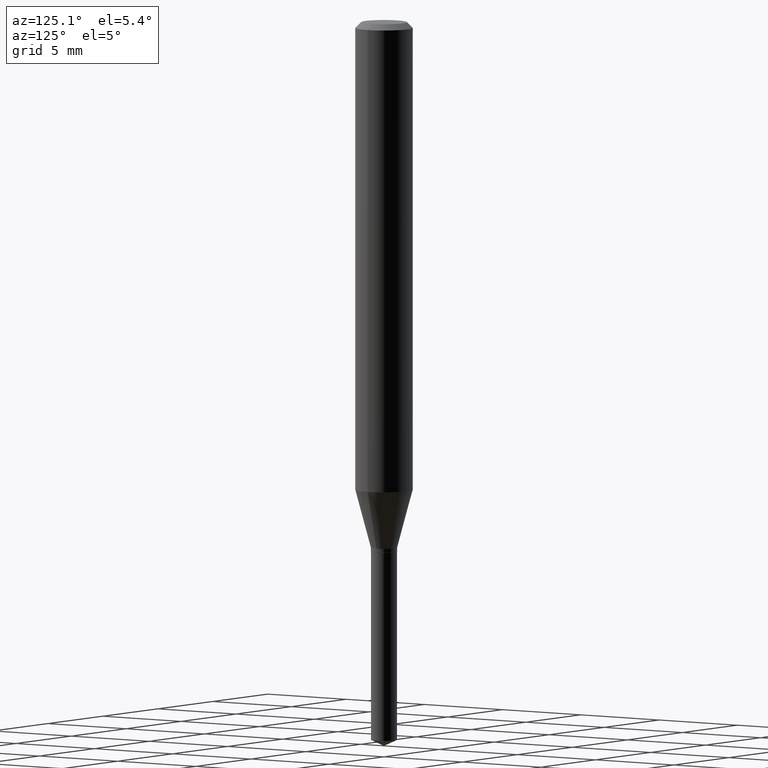
[diagram: clean part render]
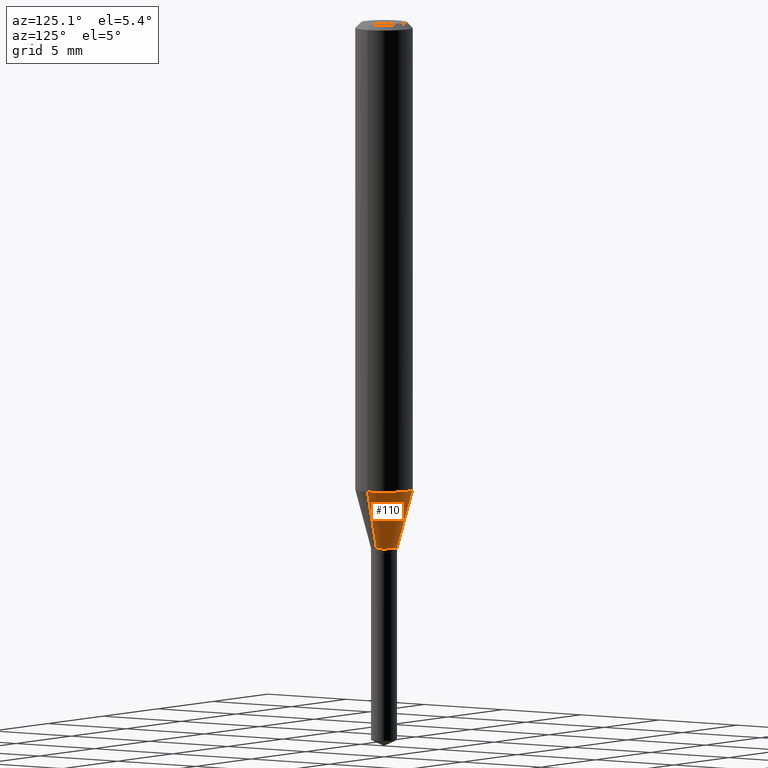
[diagram: same view with one face highlighted and labeled with its STEP entity id]
A machine part, auxiliary view. The second image highlights one B-rep face of the part: STEP entity #110.
In plain terms, the highlighted conical surface has half-angle 15 deg.
Its self-contained STEP definition (entity closure, byte-faithful):
#10 = CARTESIAN_POINT ( 'NONE',  ( -0.02695000000000000173, -3.601654059231846417E-15, -1.086399999999999810 ) ) ;
#19 = CARTESIAN_POINT ( 'NONE',  ( -0.05905000000000011628, -2.955294458470109520E-15, -0.9666011690770388576 ) ) ;
#21 = AXIS2_PLACEMENT_3D ( 'NONE', #215, #201, #354 ) ;
#65 = EDGE_LOOP ( 'NONE', ( #275, #84, #349, #386 ) ) ;
#81 = VERTEX_POINT ( 'NONE', #19 ) ;
#84 = ORIENTED_EDGE ( 'NONE', *, *, #324, .T. ) ;
#89 = VECTOR ( 'NONE', #184, 39.37007874015747433 ) ;
#92 = LINE ( 'NONE', #10, #89 ) ;
#110 = ADVANCED_FACE ( 'NONE', ( #360 ), #323, .T. ) ;
#123 = DIRECTION ( 'NONE',  ( -2.445468806185136597E-29, 3.491481338843145583E-15, 1.000000000000000000 ) ) ;
#129 = DIRECTION ( 'NONE',  ( 1.000000000000000000, -6.982962677686265133E-15, 0.000000000000000000 ) ) ;
#134 = EDGE_CURVE ( 'NONE', #310, #241, #391, .T. ) ;
#165 = EDGE_CURVE ( 'NONE', #241, #81, #291, .T. ) ;
#168 = VECTOR ( 'NONE', #207, 39.37007874015747433 ) ;
#184 = DIRECTION ( 'NONE',  ( -0.2588190451025213501, 5.211531920934551042E-15, 0.9659258262890682012 ) ) ;
#186 = VERTEX_POINT ( 'NONE', #261 ) ;
#201 = DIRECTION ( 'NONE',  ( -2.445468806185136597E-29, 3.491481338843145583E-15, 1.000000000000000000 ) ) ;
#207 = DIRECTION ( 'NONE',  ( 0.2588190451025213501, 1.565188264969621968E-15, 0.9659258262890682012 ) ) ;
#215 = CARTESIAN_POINT ( 'NONE',  ( 2.363793006999983413E-29, -3.374869943936449013E-15, -0.9666011690770388576 ) ) ;
#241 = VERTEX_POINT ( 'NONE', #303 ) ;
#261 = CARTESIAN_POINT ( 'NONE',  ( -0.02695000000000000173, -3.614921688319449844E-15, -1.086399999999999810 ) ) ;
#275 = ORIENTED_EDGE ( 'NONE', *, *, #286, .T. ) ;
#284 = CARTESIAN_POINT ( 'NONE',  ( 2.656757311039532110E-29, -3.793145326519192838E-15, -1.086399999999999810 ) ) ;
#286 = EDGE_CURVE ( 'NONE', #310, #186, #338, .T. ) ;
#287 = CARTESIAN_POINT ( 'NONE',  ( 0.02695000000000000173, -3.981336170682838022E-15, -1.086399999999999810 ) ) ;
#291 = CIRCLE ( 'NONE', #21, 0.05905000000000011628 ) ;
#303 = CARTESIAN_POINT ( 'NONE',  ( 0.05905000000000011628, -3.787213890053824327E-15, -0.9666011690770388576 ) ) ;
#310 = VERTEX_POINT ( 'NONE', #287 ) ;
#315 = AXIS2_PLACEMENT_3D ( 'NONE', #473, #398, #129 ) ;
#323 = CONICAL_SURFACE ( 'NONE', #315, 0.02695000000000000173, 0.2617993877991500740 ) ;
#324 = EDGE_CURVE ( 'NONE', #186, #81, #92, .T. ) ;
#338 = CIRCLE ( 'NONE', #407, 0.02695000000000000173 ) ;
#349 = ORIENTED_EDGE ( 'NONE', *, *, #165, .F. ) ;
#354 = DIRECTION ( 'NONE',  ( 1.000000000000000000, -6.982962677686266711E-15, 0.000000000000000000 ) ) ;
#360 = FACE_OUTER_BOUND ( 'NONE', #65, .T. ) ;
#362 = CARTESIAN_POINT ( 'NONE',  ( 0.02695000000000000173, -3.981336170682838022E-15, -1.086399999999999810 ) ) ;
#386 = ORIENTED_EDGE ( 'NONE', *, *, #134, .F. ) ;
#391 = LINE ( 'NONE', #362, #168 ) ;
#398 = DIRECTION ( 'NONE',  ( -2.445468806185136597E-29, 3.491481338843145583E-15, 1.000000000000000000 ) ) ;
#407 = AXIS2_PLACEMENT_3D ( 'NONE', #284, #123, #426 ) ;
#426 = DIRECTION ( 'NONE',  ( 1.000000000000000000, -6.982962677686265133E-15, 0.000000000000000000 ) ) ;
#473 = CARTESIAN_POINT ( 'NONE',  ( 2.656757311039532110E-29, -3.793145326519192838E-15, -1.086399999999999810 ) ) ;